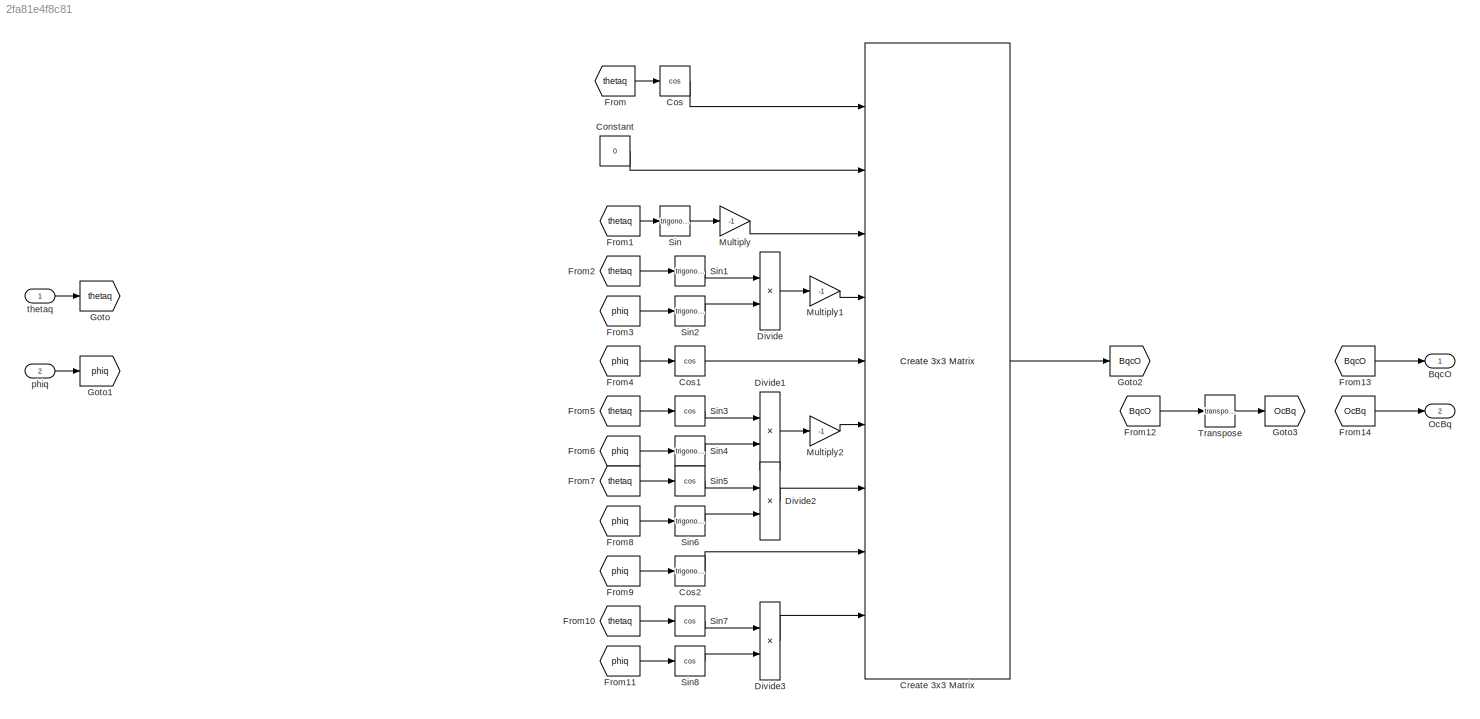
MODEL slx_2fa81e4f8c81
KIND library
CONFIG AbsTol = auto
CONFIG EnableMultiTasking = off
CONFIG FixedStep = auto
CONFIG MaxStep = auto
CONFIG MinStep = auto
CONFIG RelTol = 1e-3
CONFIG SampleTimeConstraint = Unconstrained
CONFIG Solver = VariableStepAuto
CONFIG SolverName = VariableStepAuto
CONFIG StartTime = 0.0
CONFIG StopTime = 10.0
BLOCK [Outport] BqcO
  IconDisplay = Port number
BLOCK [Constant] Constant
  Value = 0
BLOCK [Trigonometry] Cos
  Operator = cos
  Ports = [1, 1]
BLOCK [Trigonometry] Cos1
  Operator = cos
  Ports = [1, 1]
BLOCK [Trigonometry] Cos2
  Ports = [1, 1]
BLOCK [Reference] Create 3x3 Matrix  REF=sharedutil/Create 3x3 Matrix
  Ports = [9, 1]
  SourceBlock = sharedutil/Create 3x3 Matrix
  SourceProductBaseCode = AE
  SourceProductName = Aerospace Blockset
  SourceType = Create 3x3 Matrix
BLOCK [Product] Divide
  InputSameDT = off
  Inputs = **
  OutDataTypeStr = Inherit: Inherit via internal rule
  Ports = [2, 1]
  RndMeth = Floor
  SaturateOnIntegerOverflow = off
BLOCK [Product] Divide1
  InputSameDT = off
  Inputs = **
  OutDataTypeStr = Inherit: Inherit via internal rule
  Ports = [2, 1]
  RndMeth = Floor
  SaturateOnIntegerOverflow = off
BLOCK [Product] Divide2
  InputSameDT = off
  Inputs = **
  OutDataTypeStr = Inherit: Inherit via internal rule
  Ports = [2, 1]
  RndMeth = Floor
  SaturateOnIntegerOverflow = off
BLOCK [Product] Divide3
  InputSameDT = off
  Inputs = **
  OutDataTypeStr = Inherit: Inherit via internal rule
  Ports = [2, 1]
  RndMeth = Floor
  SaturateOnIntegerOverflow = off
BLOCK [From] From
  GotoTag = thetaq
BLOCK [From] From1
  GotoTag = thetaq
BLOCK [From] From10
  GotoTag = thetaq
BLOCK [From] From11
  GotoTag = phiq
BLOCK [From] From12
  GotoTag = BqcO
BLOCK [From] From13
  GotoTag = BqcO
BLOCK [From] From14
  GotoTag = OcBq
BLOCK [From] From2
  GotoTag = thetaq
BLOCK [From] From3
  GotoTag = phiq
BLOCK [From] From4
  GotoTag = phiq
BLOCK [From] From5
  GotoTag = thetaq
BLOCK [From] From6
  GotoTag = phiq
BLOCK [From] From7
  GotoTag = thetaq
BLOCK [From] From8
  GotoTag = phiq
BLOCK [From] From9
  GotoTag = phiq
BLOCK [Goto] Goto
  GotoTag = thetaq
BLOCK [Goto] Goto1
  GotoTag = phiq
BLOCK [Goto] Goto2
  GotoTag = BqcO
BLOCK [Goto] Goto3
  GotoTag = OcBq
BLOCK [Gain] Multiply
  Gain = -1
  OutDataTypeStr = Inherit: Inherit via internal rule
  ParamDataTypeStr = Inherit: Inherit via internal rule
  SaturateOnIntegerOverflow = off
BLOCK [Gain] Multiply1
  Gain = -1
  OutDataTypeStr = Inherit: Inherit via internal rule
  ParamDataTypeStr = Inherit: Inherit via internal rule
  SaturateOnIntegerOverflow = off
BLOCK [Gain] Multiply2
  Gain = -1
  OutDataTypeStr = Inherit: Inherit via internal rule
  ParamDataTypeStr = Inherit: Inherit via internal rule
  SaturateOnIntegerOverflow = off
BLOCK [Outport] OcBq
  IconDisplay = Port number
  Port = 2
BLOCK [Trigonometry] Sin
  Ports = [1, 1]
BLOCK [Trigonometry] Sin1
  Ports = [1, 1]
BLOCK [Trigonometry] Sin2
  Ports = [1, 1]
BLOCK [Trigonometry] Sin3
  Operator = cos
  Ports = [1, 1]
BLOCK [Trigonometry] Sin4
  Ports = [1, 1]
BLOCK [Trigonometry] Sin5
  Operator = cos
  Ports = [1, 1]
BLOCK [Trigonometry] Sin6
  Ports = [1, 1]
BLOCK [Trigonometry] Sin7
  Operator = cos
  Ports = [1, 1]
BLOCK [Trigonometry] Sin8
  Operator = cos
  Ports = [1, 1]
BLOCK [Math] Transpose
  Operator = transpose
  Ports = [1, 1]
BLOCK [Inport] phiq
  IconDisplay = Port number
  Port = 2
BLOCK [Inport] thetaq 
  IconDisplay = Port number
LINE Constant:1 -> Create 3x3 Matrix:2
LINE Cos1:1 -> Create 3x3 Matrix:5
LINE Cos2:1 -> Create 3x3 Matrix:8
LINE Cos:1 -> Create 3x3 Matrix:1
LINE Create 3x3 Matrix:1 -> Goto2:1
LINE Divide1:1 -> Multiply2:1
LINE Divide2:1 -> Create 3x3 Matrix:7
LINE Divide3:1 -> Create 3x3 Matrix:9
LINE Divide:1 -> Multiply1:1
LINE From10:1 -> Sin7:1
LINE From11:1 -> Sin8:1
LINE From12:1 -> Transpose:1
LINE From13:1 -> BqcO:1
LINE From14:1 -> OcBq:1
LINE From1:1 -> Sin:1
LINE From2:1 -> Sin1:1
LINE From3:1 -> Sin2:1
LINE From4:1 -> Cos1:1
LINE From5:1 -> Sin3:1
LINE From6:1 -> Sin4:1
LINE From7:1 -> Sin5:1
LINE From8:1 -> Sin6:1
LINE From9:1 -> Cos2:1
LINE From:1 -> Cos:1
LINE Multiply1:1 -> Create 3x3 Matrix:4
LINE Multiply2:1 -> Create 3x3 Matrix:6
LINE Multiply:1 -> Create 3x3 Matrix:3
LINE Sin1:1 -> Divide:1
LINE Sin2:1 -> Divide:2
LINE Sin3:1 -> Divide1:1
LINE Sin4:1 -> Divide1:2
LINE Sin5:1 -> Divide2:1
LINE Sin6:1 -> Divide2:2
LINE Sin7:1 -> Divide3:1
LINE Sin8:1 -> Divide3:2
LINE Sin:1 -> Multiply:1
LINE Transpose:1 -> Goto3:1
LINE phiq:1 -> Goto1:1
LINE thetaq :1 -> Goto:1
